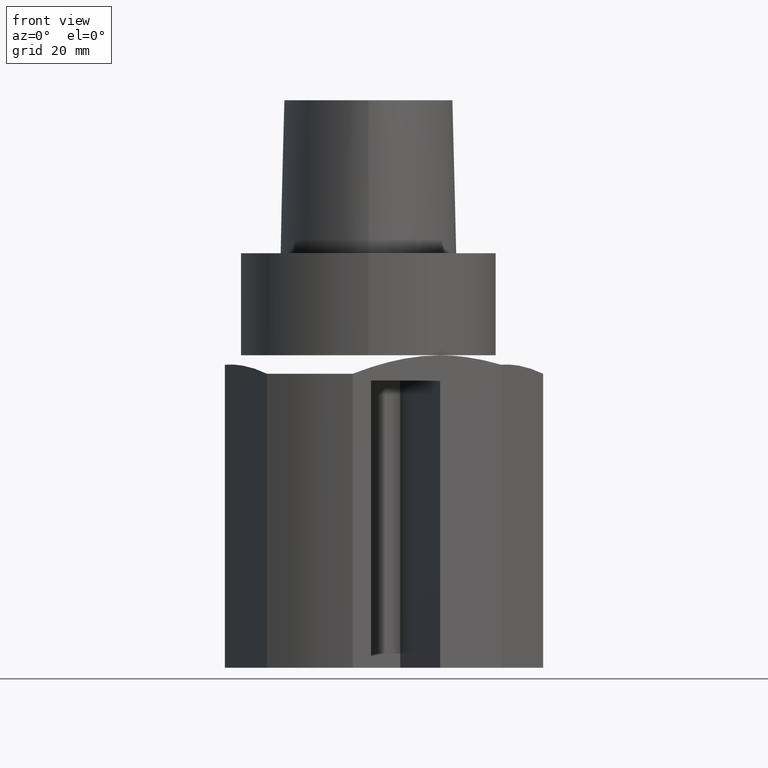
[diagram: clean part render]
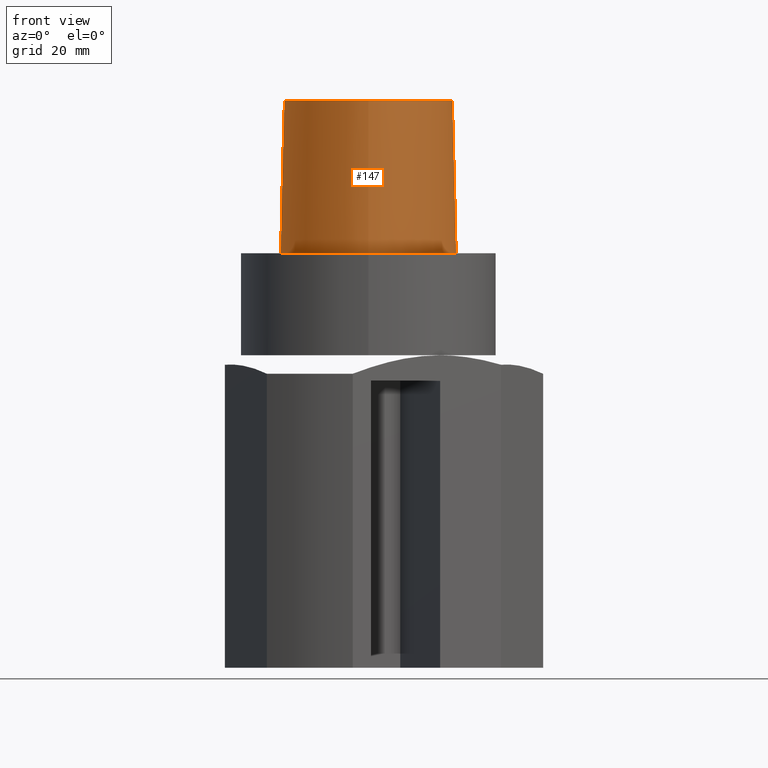
[diagram: same view with one face highlighted and labeled with its STEP entity id]
A machine part, front view. The second image highlights one B-rep face of the part: STEP entity #147.
In plain terms, the highlighted face is a freeform B-spline surface patch.
Its self-contained STEP definition (entity closure, byte-faithful):
#147=ADVANCED_FACE('240[2]',(#413),#414,.F.);
#233=EDGE_CURVE('240[2]',#538,#539,#540,.T.);
#235=EDGE_CURVE('240[2]',#539,#539,#542,.T.);
#254=EDGE_CURVE('240[2]',#538,#538,#565,.T.);
#413=FACE_OUTER_BOUND('',#760,.T.);
#414=B_SPLINE_SURFACE_WITH_KNOTS('',3,3,((#761,#762,#763,#764),(#765,#766,#767,#768),(#769,#770,#771,#772),(#773,#774,#775,#776),(#777,#778,#779,#780),(#781,#782,#783,#784),(#785,#786,#787,#788),(#789,#790,#791,#792),(#793,#794,#795,#796),(#797,#798,#799,#800),(#801,#802,#803,#804),(#805,#806,#807,#808),(#809,#810,#811,#812),(#813,#814,#815,#816),(#817,#818,#819,#820),(#821,#822,#823,#824),(#825,#826,#827,#828),(#829,#830,#831,#832),(#833,#834,#835,#836),(#837,#838,#839,#840),(#841,#842,#843,#844),(#845,#846,#847,#848),(#849,#850,#851,#852),(#853,#854,#855,#856),(#857,#858,#859,#860),(#861,#862,#863,#864),(#865,#866,#867,#868),(#869,#870,#871,#872),(#873,#874,#875,#876),(#877,#878,#879,#880),(#881,#882,#883,#884),(#885,#886,#887,#888),(#889,#890,#891,#892),(#893,#894,#895,#896),(#897,#898,#899,#900),(#901,#902,#903,#904),(#905,#906,#907,#908),(#909,#910,#911,#912),(#913,#914,#915,#916),(#917,#918,#919,#920),(#921,#922,#923,#924),(#925,#926,#927,#928),(#929,#930,#931,#932),(#933,#934,#935,#936),(#937,#938,#939,#940),(#941,#942,#943,#944),(#945,#946,#947,#948),(#949,#950,#951,#952),(#953,#954,#955,#956),(#957,#958,#959,#960),(#961,#962,#963,#964),(#965,#966,#967,#968),(#969,#970,#971,#972),(#973,#974,#975,#976),(#977,#978,#979,#980),(#981,#982,#983,#984),(#985,#986,#987,#988),(#989,#990,#991,#992),(#993,#994,#995,#996),(#997,#998,#999,#1000),(#1001,#1002,#1003,#1004),(#1005,#1006,#1007,#1008),(#1009,#1010,#1011,#1012),(#1013,#1014,#1015,#1016),(#1017,#1018,#1019,#1020),(#1021,#1022,#1023,#1024),(#1025,#1026,#1027,#1028),(#1029,#1030,#1031,#1032),(#1033,#1034,#1035,#1036),(#1037,#1038,#1039,#1040),(#1041,#1042,#1043,#1044),(#1045,#1046,#1047,#1048),(#1049,#1050,#1051,#1052),(#1053,#1054,#1055,#1056),(#1057,#1058,#1059,#1060),(#1061,#1062,#1063,#1064),(#1065,#1066,#1067,#1068),(#1069,#1070,#1071,#1072),(#1073,#1074,#1075,#1076),(#1077,#1078,#1079,#1080),(#1081,#1082,#1083,#1084),(#1085,#1086,#1087,#1088),(#1089,#1090,#1091,#1092),(#1093,#1094,#1095,#1096),(#1097,#1098,#1099,#1100),(#1101,#1102,#1103,#1104),(#1105,#1106,#1107,#1108),(#1109,#1110,#1111,#1112),(#1113,#1114,#1115,#1116),(#1117,#1118,#1119,#1120),(#1121,#1122,#1123,#1124),(#1125,#1126,#1127,#1128),(#1129,#1130,#1131,#1132),(#1133,#1134,#1135,#1136),(#1137,#1138,#1139,#1140),(#1141,#1142,#1143,#1144)),.UNSPECIFIED.,.T.,.F.,.F.,(4,2,2,2,2,2,2,2,2,2,2,2,2,2,2,2,2,2,2,2,2,2,2,2,2,2,2,2,2,2,2,2,2,2,2,2,2,2,2,2,2,2,2,2,2,2,2,4),(4,4),(0.0,0.023266238907101,0.04642321916497,0.069037428304488,0.090947532765319,0.112181511979892,0.132874081906891,0.153211623090307,0.173403899120381,0.193668982465133,0.214220857423359,0.235256169578881,0.256931182005521,0.279316100520023,0.302327812922285,0.325615908452607,0.348863915862354,0.37211588966546,0.394944167045003,0.417090524637617,0.438530318382332,0.459402579310312,0.479837360161492,0.499920279645309,0.520144802150986,0.540579089622822,0.561451608096301,0.58289068047617,0.605037731022285,0.627865851215146,0.651117829762372,0.674365843809947,0.697654002942623,0.720665464887439,0.743050887635834,0.764725116248188,0.7857605656535,0.806312370379442,0.826577482765943,0.846769695561797,0.867106984936976,0.887799904832214,0.90903349107026,0.930943318867528,0.953557807681498,0.97671479981417,0.999990517903696,1.0),(0.0,1.0),.UNSPECIFIED.);
#538=VERTEX_POINT('',#1683);
#539=VERTEX_POINT('',#1684);
#540=B_SPLINE_CURVE_WITH_KNOTS('',3,(#1685,#1686,#1687,#1688),.UNSPECIFIED.,.F.,.F.,(4,4),(0.0,1.0),.UNSPECIFIED.);
#542=B_SPLINE_CURVE_WITH_KNOTS('',3,(#1691,#1692,#1693,#1694,#1695,#1696,#1697,#1698,#1699,#1700,#1701,#1702,#1703,#1704,#1705,#1706,#1707,#1708,#1709,#1710,#1711,#1712,#1713,#1714,#1715,#1716,#1717,#1718,#1719,#1720,#1721,#1722,#1723,#1724,#1725,#1726,#1727,#1728,#1729,#1730,#1731,#1732,#1733,#1734,#1735,#1736,#1737,#1738,#1739),.UNSPECIFIED.,.T.,.F.,(4,1,1,1,1,1,1,1,1,1,1,1,1,1,1,1,1,1,1,1,1,1,1,1,1,1,1,1,1,1,1,1,1,1,1,1,1,1,1,1,1,1,1,1,1,1,4),(0.0,0.023351915855444,0.046587266388789,0.069240176568065,0.091148511555983,0.1123498082883,0.132988344921176,0.153259056323784,0.173379606256739,0.193575406900779,0.21406817556902,0.235062876490599,0.256724107877353,0.279134072148509,0.302211911987387,0.325585720772129,0.348897942793447,0.372235827811492,0.395117449062017,0.417273776916591,0.438690480917031,0.459517607941485,0.479887726529216,0.499920279645309,0.520109124362118,0.540479544703226,0.561306546843113,0.582722343807168,0.604879209617679,0.627760890760907,0.651098683894914,0.674411064884055,0.697926557694984,0.721709534344695,0.743275604228345,0.764936939065916,0.785931598379216,0.806424124397203,0.826619873462382,0.846740294796301,0.867010839616641,0.887649545430403,0.908851158162203,0.930759261827623,0.953412277508376,0.976648149620789,1.0),.UNSPECIFIED.);
#565=B_SPLINE_CURVE_WITH_KNOTS('',3,(#1777,#1778,#1779,#1780,#1781,#1782,#1783,#1784,#1785,#1786,#1787,#1788,#1789,#1790,#1791,#1792,#1793,#1794,#1795,#1796,#1797,#1798,#1799,#1800,#1801,#1802,#1803,#1804,#1805,#1806,#1807,#1808,#1809,#1810,#1811,#1812,#1813,#1814,#1815,#1816,#1817,#1818,#1819,#1820,#1821,#1822,#1823,#1824,#1825,#1826,#1827,#1828,#1829,#1830,#1831,#1832,#1833,#1834,#1835,#1836,#1837,#1838,#1839,#1840,#1841,#1842,#1843,#1844,#1845,#1846,#1847,#1848,#1849,#1850,#1851,#1852,#1853,#1854,#1855,#1856,#1857,#1858,#1859,#1860,#1861,#1862,#1863,#1864,#1865,#1866,#1867,#1868,#1869,#1870,#1871,#1872),.UNSPECIFIED.,.T.,.F.,(4,2,2,2,2,2,2,2,2,2,2,2,2,2,2,2,2,2,2,2,2,2,2,2,2,2,2,2,2,2,2,2,2,2,2,2,2,2,2,2,2,2,2,2,2,2,2,4),(0.0,0.023266238907101,0.04642321916497,0.069037428304488,0.090947532765319,0.112181511979892,0.132874081906891,0.153211623090307,0.173403899120381,0.193668982465133,0.214220857423359,0.235256169578881,0.256931182005521,0.279316100520023,0.302327812922285,0.325615908452607,0.348863915862354,0.37211588966546,0.394944167045003,0.417090524637617,0.438530318382332,0.459402579310312,0.479837360161492,0.499920279645309,0.520144802150986,0.540579089622822,0.561451608096301,0.58289068047617,0.605037731022285,0.627865851215146,0.651117829762372,0.674365843809947,0.697654002942623,0.720665464887439,0.743050887635834,0.764725116248188,0.7857605656535,0.806312370379442,0.826577482765943,0.846769695561797,0.867106984936976,0.887799904832214,0.90903349107026,0.930943318867528,0.953557807681498,0.97671479981417,0.999990517903696,1.0),.UNSPECIFIED.);
#760=EDGE_LOOP('',(#2199,#2200,#2201,#2202));
#761=CARTESIAN_POINT('',(-0.00164083163227662,-29.5748662817043,1.4210854715202E-014));
#762=CARTESIAN_POINT('',(-0.00109388775485357,-29.1748752353538,16.0));
#763=CARTESIAN_POINT('',(-0.000546943877430524,-28.7748841890034,32.0));
#764=CARTESIAN_POINT('',(-7.10564420632982E-015,-28.3748931426529,48.0));
#765=CARTESIAN_POINT('',(-1.34367882227266,-29.5936106625075,1.4210854715202E-014));
#766=CARTESIAN_POINT('',(-1.32364088726301,-29.1954996353872,16.0));
#767=CARTESIAN_POINT('',(-1.30360295225335,-28.7973886082668,32.0));
#768=CARTESIAN_POINT('',(-1.2835650172437,-28.3992775811465,48.0));
#769=CARTESIAN_POINT('',(-2.68740420004953,-29.3328889282446,1.4210854715202E-014));
#770=CARTESIAN_POINT('',(-2.64750445553282,-28.9319521286455,16.0));
#771=CARTESIAN_POINT('',(-2.60760471101611,-28.5310153290465,32.0));
#772=CARTESIAN_POINT('',(-2.5677049664994,-28.1300785294475,48.0));
#773=CARTESIAN_POINT('',(-5.26074084631931,-28.5400905705423,1.4210854715202E-014));
#774=CARTESIAN_POINT('',(-5.18121381339101,-28.1402727371518,16.0));
#775=CARTESIAN_POINT('',(-5.10168678046272,-27.7404549037613,32.0));
#776=CARTESIAN_POINT('',(-5.02215974753443,-27.3406370703708,48.0));
#777=CARTESIAN_POINT('',(-6.49085836398545,-28.0092939838118,1.4210854715202E-014));
#778=CARTESIAN_POINT('',(-6.39148945613548,-27.6135438881297,16.0));
#779=CARTESIAN_POINT('',(-6.29212054828551,-27.2177937924476,32.0));
#780=CARTESIAN_POINT('',(-6.19275164043553,-26.8220436967655,48.0));
#781=CARTESIAN_POINT('',(-8.82856305941638,-26.7799538548108,1.4210854715202E-014));
#782=CARTESIAN_POINT('',(-8.69143543024714,-26.3953789566877,16.0));
#783=CARTESIAN_POINT('',(-8.55430780107789,-26.0108040585645,32.0));
#784=CARTESIAN_POINT('',(-8.41718017190864,-25.6262291604414,48.0));
#785=CARTESIAN_POINT('',(-9.93834640062538,-26.0856337015913,1.4210854715202E-014));
#786=CARTESIAN_POINT('',(-9.78329057919871,-25.7081232854591,16.0));
#787=CARTESIAN_POINT('',(-9.62823475777205,-25.330612869327,32.0));
#788=CARTESIAN_POINT('',(-9.47317893634538,-24.9531024531949,48.0));
#789=CARTESIAN_POINT('',(-12.0309823905868,-24.5926315357893,1.4210854715202E-014));
#790=CARTESIAN_POINT('',(-11.8421918576357,-24.2319203104979,16.0));
#791=CARTESIAN_POINT('',(-11.6534013246846,-23.8712090852066,32.0));
#792=CARTESIAN_POINT('',(-11.4646107917336,-23.5104978599152,48.0));
#793=CARTESIAN_POINT('',(-13.0167112443809,-23.7978719690822,1.4210854715202E-014));
#794=CARTESIAN_POINT('',(-12.8120582068171,-23.4468353517023,16.0));
#795=CARTESIAN_POINT('',(-12.6074051692533,-23.0957987343225,32.0));
#796=CARTESIAN_POINT('',(-12.4027521316895,-22.7447621169426,48.0));
#797=CARTESIAN_POINT('',(-14.8727265816832,-22.1381942733804,1.4210854715202E-014));
#798=CARTESIAN_POINT('',(-14.6383713737375,-21.808159912819,16.0));
#799=CARTESIAN_POINT('',(-14.4040161657918,-21.4781255522576,32.0));
#800=CARTESIAN_POINT('',(-14.1696609578462,-21.1480911916963,48.0));
#801=CARTESIAN_POINT('',(-15.7456368168333,-21.2761980066665,1.4210854715202E-014));
#802=CARTESIAN_POINT('',(-15.4973991165055,-20.9574397902916,16.0));
#803=CARTESIAN_POINT('',(-15.2491614161778,-20.6386815739168,32.0));
#804=CARTESIAN_POINT('',(-15.0009237158501,-20.319923357542,48.0));
#805=CARTESIAN_POINT('',(-17.3879214183881,-19.499427365145,0.0));
#806=CARTESIAN_POINT('',(-17.1137771976026,-19.204500665996,16.0));
#807=CARTESIAN_POINT('',(-16.8396329768171,-18.9095739668469,32.0));
#808=CARTESIAN_POINT('',(-16.5654887560317,-18.6146472676979,48.0));
#809=CARTESIAN_POINT('',(-18.1593681806271,-18.5865590846551,0.0));
#810=CARTESIAN_POINT('',(-17.8731624623415,-18.3041523513154,16.0));
#811=CARTESIAN_POINT('',(-17.5869567440558,-18.0217456179756,32.0));
#812=CARTESIAN_POINT('',(-17.3007510257701,-17.7393388846359,48.0));
#813=CARTESIAN_POINT('',(-19.6094862833069,-16.7150017171437,0.0));
#814=CARTESIAN_POINT('',(-19.3009203341129,-16.458705455358,16.0));
#815=CARTESIAN_POINT('',(-18.9923543849188,-16.2024091935724,32.0));
#816=CARTESIAN_POINT('',(-18.6837884357248,-15.9461129317867,48.0));
#817=CARTESIAN_POINT('',(-20.289522306802,-15.7573675155919,0.0));
#818=CARTESIAN_POINT('',(-19.9706311197053,-15.5146407474198,16.0));
#819=CARTESIAN_POINT('',(-19.6517399326086,-15.2719139792477,32.0));
#820=CARTESIAN_POINT('',(-19.3328487455118,-15.0291872110755,48.0));
#821=CARTESIAN_POINT('',(-21.5656702578572,-13.797506639011,0.0));
#822=CARTESIAN_POINT('',(-21.2277269942578,-13.5828445459812,16.0));
#823=CARTESIAN_POINT('',(-20.8897837306584,-13.3681824529514,32.0));
#824=CARTESIAN_POINT('',(-20.551840467059,-13.1535203599216,48.0));
#825=CARTESIAN_POINT('',(-22.1623469365906,-12.7956473319474,0.0));
#826=CARTESIAN_POINT('',(-21.8156667575515,-12.5954737847242,16.0));
#827=CARTESIAN_POINT('',(-21.4689865785123,-12.395300237501,32.0));
#828=CARTESIAN_POINT('',(-21.1223063994731,-12.1951266902779,48.0));
#829=CARTESIAN_POINT('',(-23.2752180864568,-10.74347032584,0.0));
#830=CARTESIAN_POINT('',(-22.9126797349918,-10.5732054400807,16.0));
#831=CARTESIAN_POINT('',(-22.5501413835268,-10.4029405543215,32.0));
#832=CARTESIAN_POINT('',(-22.1876030320618,-10.2326756685623,48.0));
#833=CARTESIAN_POINT('',(-23.7911146053519,-9.69299092556668,0.0));
#834=CARTESIAN_POINT('',(-23.4214608987418,-9.53814935338787,16.0));
#835=CARTESIAN_POINT('',(-23.0518071921317,-9.38330778120906,32.0));
#836=CARTESIAN_POINT('',(-22.6821534855217,-9.22846620903024,48.0));
#837=CARTESIAN_POINT('',(-24.7420870094788,-7.53819816873289,0.0));
#838=CARTESIAN_POINT('',(-24.3598707005685,-7.4151490430653,16.0));
#839=CARTESIAN_POINT('',(-23.9776543916582,-7.29209991739768,32.0));
#840=CARTESIAN_POINT('',(-23.595438082748,-7.16905079173009,48.0));
#841=CARTESIAN_POINT('',(-25.1759157970854,-6.43333334291293,0.0));
#842=CARTESIAN_POINT('',(-24.7882755665458,-6.32666326762097,16.0));
#843=CARTESIAN_POINT('',(-24.4006353360062,-6.21999319232899,32.0));
#844=CARTESIAN_POINT('',(-24.0129951054667,-6.11332311703703,48.0));
#845=CARTESIAN_POINT('',(-25.9554404448504,-4.16361692512217,0.0));
#846=CARTESIAN_POINT('',(-25.5588495567967,-4.090664550757,16.0));
#847=CARTESIAN_POINT('',(-25.162258668743,-4.01771217639183,32.0));
#848=CARTESIAN_POINT('',(-24.7656677806893,-3.94475980202668,48.0));
#849=CARTESIAN_POINT('',(-26.2988231270793,-2.99796562277024,0.0));
#850=CARTESIAN_POINT('',(-25.8987494668059,-2.94236646726182,16.0));
#851=CARTESIAN_POINT('',(-25.4986758065324,-2.8867673117534,32.0));
#852=CARTESIAN_POINT('',(-25.0986021462589,-2.83116815624498,48.0));
#853=CARTESIAN_POINT('',(-26.8823734669132,-0.603263018451628,0.0));
#854=CARTESIAN_POINT('',(-26.4773269868267,-0.58326995782474,16.0));
#855=CARTESIAN_POINT('',(-26.0722805067402,-0.563276897197824,32.0));
#856=CARTESIAN_POINT('',(-25.6672340266537,-0.543283836570936,48.0));
#857=CARTESIAN_POINT('',(-27.1190847093475,0.626638314508966,0.0));
#858=CARTESIAN_POINT('',(-26.7126061354873,0.628366159501013,16.0));
#859=CARTESIAN_POINT('',(-26.306127561627,0.63009400449306,32.0));
#860=CARTESIAN_POINT('',(-25.8996489877668,0.631821849485107,48.0));
#861=CARTESIAN_POINT('',(-27.4609002561416,3.14696645819561,0.0));
#862=CARTESIAN_POINT('',(-27.0547212638528,3.11146875703147,16.0));
#863=CARTESIAN_POINT('',(-26.6485422715639,3.07597105586737,32.0));
#864=CARTESIAN_POINT('',(-26.2423632792751,3.04047335470324,48.0));
#865=CARTESIAN_POINT('',(-27.5614402101816,4.43805628657725,0.0));
#866=CARTESIAN_POINT('',(-27.1570763257013,4.38358087482689,16.0));
#867=CARTESIAN_POINT('',(-26.7527124412211,4.32910546307653,32.0));
#868=CARTESIAN_POINT('',(-26.3483485567409,4.27463005132617,48.0));
#869=CARTESIAN_POINT('',(-27.5863066124947,7.05787796805234,0.0));
#870=CARTESIAN_POINT('',(-27.1886435264071,6.96515495190911,16.0));
#871=CARTESIAN_POINT('',(-26.7909804403194,6.87243193576589,32.0));
#872=CARTESIAN_POINT('',(-26.3933173542318,6.77970891962269,48.0));
#873=CARTESIAN_POINT('',(-27.5056201279308,8.38665155837626,0.0));
#874=CARTESIAN_POINT('',(-27.1129044510275,8.27466583473029,16.0));
#875=CARTESIAN_POINT('',(-26.7201887741241,8.16268011108428,32.0));
#876=CARTESIAN_POINT('',(-26.3274730972208,8.05069438743831,48.0));
#877=CARTESIAN_POINT('',(-27.0954571151674,11.0352567744664,0.0));
#878=CARTESIAN_POINT('',(-26.7183753741604,10.8867620797351,16.0));
#879=CARTESIAN_POINT('',(-26.3412936331534,10.7382673850039,32.0));
#880=CARTESIAN_POINT('',(-25.9642118921463,10.5897726902727,48.0));
#881=CARTESIAN_POINT('',(-26.7630041230867,12.3547893226748,0.0));
#882=CARTESIAN_POINT('',(-26.3965598522753,12.1889620363458,16.0));
#883=CARTESIAN_POINT('',(-26.0301155814639,12.0231347500168,32.0));
#884=CARTESIAN_POINT('',(-25.6636713106525,11.8573074636878,48.0));
#885=CARTESIAN_POINT('',(-25.6724521861925,14.8124702450063,0.0));
#886=CARTESIAN_POINT('',(-25.3253408215574,14.6123501239471,16.0));
#887=CARTESIAN_POINT('',(-24.9782294569222,14.4122300028879,32.0));
#888=CARTESIAN_POINT('',(-24.631118092287,14.2121098818286,48.0));
#889=CARTESIAN_POINT('',(-24.9150869333233,15.9509269437304,0.0));
#890=CARTESIAN_POINT('',(-24.5767509947569,15.7338600538486,16.0));
#891=CARTESIAN_POINT('',(-24.2384150561905,15.5167931639667,32.0));
#892=CARTESIAN_POINT('',(-23.9000791176241,15.2997262740848,48.0));
#893=CARTESIAN_POINT('',(-23.1210312548435,17.9569470053759,0.0));
#894=CARTESIAN_POINT('',(-22.8030108627851,17.7061249979891,16.0));
#895=CARTESIAN_POINT('',(-22.4849904707268,17.4553029906023,32.0));
#896=CARTESIAN_POINT('',(-22.1669700786685,17.2044809832156,48.0));
#897=CARTESIAN_POINT('',(-22.0842931950003,18.8244641174544,0.0));
#898=CARTESIAN_POINT('',(-21.7778135373241,18.5567873324772,16.0));
#899=CARTESIAN_POINT('',(-21.4713338796478,18.2891105475,32.0));
#900=CARTESIAN_POINT('',(-21.1648542219715,18.0214337625228,48.0));
#901=CARTESIAN_POINT('',(-19.908909483221,20.3616348354058,0.0));
#902=CARTESIAN_POINT('',(-19.628591242806,20.0640526797034,16.0));
#903=CARTESIAN_POINT('',(-19.348273002391,19.766470524001,32.0));
#904=CARTESIAN_POINT('',(-19.0679547619761,19.4688883682986,48.0));
#905=CARTESIAN_POINT('',(-18.7724650249979,21.0346058511353,0.0));
#906=CARTESIAN_POINT('',(-18.5068075321553,20.7239723375169,16.0));
#907=CARTESIAN_POINT('',(-18.2411500393127,20.4133388238985,32.0));
#908=CARTESIAN_POINT('',(-17.9754925464701,20.1027053102802,48.0));
#909=CARTESIAN_POINT('',(-16.4567596515209,22.2069945116741,0.0));
#910=CARTESIAN_POINT('',(-16.2218541830065,21.8737033613927,16.0));
#911=CARTESIAN_POINT('',(-15.9869487144921,21.5404122111113,32.0));
#912=CARTESIAN_POINT('',(-15.7520432459778,21.2071210608299,48.0));
#913=CARTESIAN_POINT('',(-15.2797918086139,22.7109959882008,0.0));
#914=CARTESIAN_POINT('',(-15.0609268076114,22.3679990903467,16.0));
#915=CARTESIAN_POINT('',(-14.8420618066089,22.0250021924925,32.0));
#916=CARTESIAN_POINT('',(-14.6231968056063,21.6820052946383,48.0));
#917=CARTESIAN_POINT('',(-12.9207332535993,23.5857253409895,0.0));
#918=CARTESIAN_POINT('',(-12.7344650558058,23.2254730372688,16.0));
#919=CARTESIAN_POINT('',(-12.5481968580123,22.8652207335481,32.0));
#920=CARTESIAN_POINT('',(-12.3619286602188,22.5049684298274,48.0));
#921=CARTESIAN_POINT('',(-11.740003999522,23.9601922020954,0.0));
#922=CARTESIAN_POINT('',(-11.5702860772561,23.5923778375068,16.0));
#923=CARTESIAN_POINT('',(-11.4005681549901,23.2245634729183,32.0));
#924=CARTESIAN_POINT('',(-11.2308502327242,22.8567491083297,48.0));
#925=CARTESIAN_POINT('',(-9.37648722149752,24.5736332451035,0.0));
#926=CARTESIAN_POINT('',(-9.24017438913907,24.1942544876504,16.0));
#927=CARTESIAN_POINT('',(-9.10386155678063,23.8148757301974,32.0));
#928=CARTESIAN_POINT('',(-8.96754872442218,23.4354969727443,48.0));
#929=CARTESIAN_POINT('',(-8.19458153545295,24.8159316598014,0.0));
#930=CARTESIAN_POINT('',(-8.07509348120514,24.4324733305797,16.0));
#931=CARTESIAN_POINT('',(-7.95560542695733,24.049015001358,32.0));
#932=CARTESIAN_POINT('',(-7.83611737270952,23.6655566721364,48.0));
#933=CARTESIAN_POINT('',(-5.83850844197054,25.1759510165757,0.0));
#934=CARTESIAN_POINT('',(-5.75262513537188,24.7811764769356,16.0));
#935=CARTESIAN_POINT('',(-5.66674182877322,24.3864019372956,32.0));
#936=CARTESIAN_POINT('',(-5.58085852217456,23.9916273976555,48.0));
#937=CARTESIAN_POINT('',(-4.66469807187812,25.2961766417791,0.0));
#938=CARTESIAN_POINT('',(-4.59558843273108,24.8941072061456,16.0));
#939=CARTESIAN_POINT('',(-4.52647879358404,24.492037770512,32.0));
#940=CARTESIAN_POINT('',(-4.457369154437,24.0899683348785,48.0));
#941=CARTESIAN_POINT('',(-2.3312699890678,25.4544662638825,0.0));
#942=CARTESIAN_POINT('',(-2.29647121024837,25.0618226209864,16.0));
#943=CARTESIAN_POINT('',(-2.26167243142894,24.6691789780903,32.0));
#944=CARTESIAN_POINT('',(-2.22687365260951,24.2765353351942,48.0));
#945=CARTESIAN_POINT('',(-1.17175591409117,25.4939093361241,0.0));
#946=CARTESIAN_POINT('',(-1.15448009866525,25.1176923885799,16.0));
#947=CARTESIAN_POINT('',(-1.13720428323932,24.7414754410358,32.0));
#948=CARTESIAN_POINT('',(-1.1199284678134,24.3652584934917,48.0));
#949=CARTESIAN_POINT('',(1.15545266416126,25.494540252471,0.0));
#950=CARTESIAN_POINT('',(1.13757337077305,25.1184162091964,16.0));
#951=CARTESIAN_POINT('',(1.11969407738485,24.7422921659217,32.0));
#952=CARTESIAN_POINT('',(1.10181478399665,24.366168122647,48.0));
#953=CARTESIAN_POINT('',(2.32314720120702,25.4551743644366,0.0));
#954=CARTESIAN_POINT('',(2.28763587852751,25.0624845721615,16.0));
#955=CARTESIAN_POINT('',(2.252124555848,24.6697947798863,32.0));
#956=CARTESIAN_POINT('',(2.21661323316848,24.2771049876112,48.0));
#957=CARTESIAN_POINT('',(4.66463729586072,25.2960231489021,0.0));
#958=CARTESIAN_POINT('',(4.59473395742708,24.89409982816,16.0));
#959=CARTESIAN_POINT('',(4.52483061899343,24.492176507418,32.0));
#960=CARTESIAN_POINT('',(4.45492728055979,24.0902531866759,48.0));
#961=CARTESIAN_POINT('',(5.83837051795068,25.1754079607774,0.0));
#962=CARTESIAN_POINT('',(5.75171531671322,24.7809806255071,16.0));
#963=CARTESIAN_POINT('',(5.66506011547576,24.3865532902368,32.0));
#964=CARTESIAN_POINT('',(5.5784049142383,23.9921259549665,48.0));
#965=CARTESIAN_POINT('',(8.19448404193754,24.8154739309331,0.0));
#966=CARTESIAN_POINT('',(8.07421934126736,24.4324236535682,16.0));
#967=CARTESIAN_POINT('',(7.95395464059718,24.0493733762032,32.0));
#968=CARTESIAN_POINT('',(7.833689939927,23.6663230988383,48.0));
#969=CARTESIAN_POINT('',(9.37650995847748,24.573664860466,0.0));
#970=CARTESIAN_POINT('',(9.23939278056019,24.1945289885103,16.0));
#971=CARTESIAN_POINT('',(9.1022756026429,23.8153931165546,32.0));
#972=CARTESIAN_POINT('',(8.96515842472561,23.4362572445989,48.0));
#973=CARTESIAN_POINT('',(11.7399573199399,23.9602471092435,0.0));
#974=CARTESIAN_POINT('',(11.5694176589878,23.5925750133392,16.0));
#975=CARTESIAN_POINT('',(11.3988779980358,23.2249029174349,32.0));
#976=CARTESIAN_POINT('',(11.2283383370838,22.8572308215306,48.0));
#977=CARTESIAN_POINT('',(12.9204914744584,23.585293366417,0.0));
#978=CARTESIAN_POINT('',(12.7334126019956,23.2252563620381,16.0));
#979=CARTESIAN_POINT('',(12.5463337295329,22.8652193576591,32.0));
#980=CARTESIAN_POINT('',(12.3592548570701,22.5051823532802,48.0));
#981=CARTESIAN_POINT('',(15.2795848008339,22.7105342386106,0.0));
#982=CARTESIAN_POINT('',(15.0599456207753,22.3678257332467,16.0));
#983=CARTESIAN_POINT('',(14.8403064407168,22.0251172278828,32.0));
#984=CARTESIAN_POINT('',(14.6206672606582,21.6824087225189,48.0));
#985=CARTESIAN_POINT('',(16.4567913745813,22.2070147920283,0.0));
#986=CARTESIAN_POINT('',(16.2211379891366,21.8740106312453,16.0));
#987=CARTESIAN_POINT('',(15.985484603692,21.5410064704624,32.0));
#988=CARTESIAN_POINT('',(15.7498312182473,21.2080023096794,48.0));
#989=CARTESIAN_POINT('',(18.7726283764867,21.034903794727,0.0));
#990=CARTESIAN_POINT('',(18.5061802246464,20.7246144010509,16.0));
#991=CARTESIAN_POINT('',(18.239732072806,20.4143250073749,32.0));
#992=CARTESIAN_POINT('',(17.9732839209656,20.1040356136989,48.0));
#993=CARTESIAN_POINT('',(19.9089592260428,20.3617120962174,0.0));
#994=CARTESIAN_POINT('',(19.6277825012094,20.0645362290446,16.0));
#995=CARTESIAN_POINT('',(19.346605776376,19.7673603618717,32.0));
#996=CARTESIAN_POINT('',(19.0654290515425,19.4701844946989,48.0));
#997=CARTESIAN_POINT('',(22.0842485191724,18.8243782496281,0.0));
#998=CARTESIAN_POINT('',(21.7772896699694,18.5572545504423,16.0));
#999=CARTESIAN_POINT('',(21.4703308207664,18.2901308512565,32.0));
#1000=CARTESIAN_POINT('',(21.1633719715633,18.0230071520707,48.0));
#1001=CARTESIAN_POINT('',(23.12100726512,17.9569227334155,0.0));
#1002=CARTESIAN_POINT('',(22.8029696368782,17.7067453188338,16.0));
#1003=CARTESIAN_POINT('',(22.4849320086363,17.456567904252,32.0));
#1004=CARTESIAN_POINT('',(22.1668943803944,17.2063904896703,48.0));
#1005=CARTESIAN_POINT('',(24.9151158158093,15.9509545348034,0.0));
#1006=CARTESIAN_POINT('',(24.5756586677008,15.7344431299893,16.0));
#1007=CARTESIAN_POINT('',(24.2362015195923,15.5179317251751,32.0));
#1008=CARTESIAN_POINT('',(23.8967443714838,15.301420320361,48.0));
#1009=CARTESIAN_POINT('',(25.6725132300842,14.8124880933032,0.0));
#1010=CARTESIAN_POINT('',(25.3227202771017,14.6127234549365,16.0));
#1011=CARTESIAN_POINT('',(24.9729273241191,14.4129588165699,32.0));
#1012=CARTESIAN_POINT('',(24.6231343711365,14.2131941782033,48.0));
#1013=CARTESIAN_POINT('',(26.762962807837,12.3547780213407,0.0));
#1014=CARTESIAN_POINT('',(26.398663500033,12.1901922596334,16.0));
#1015=CARTESIAN_POINT('',(26.0343641922291,12.0256064979261,32.0));
#1016=CARTESIAN_POINT('',(25.6700648844252,11.8610207362188,48.0));
#1017=CARTESIAN_POINT('',(27.0952799458876,11.0352256163986,0.0));
#1018=CARTESIAN_POINT('',(26.7267395269462,10.8890582561754,16.0));
#1019=CARTESIAN_POINT('',(26.3581991080048,10.7428908959522,32.0));
#1020=CARTESIAN_POINT('',(25.9896586890633,10.596723535729,48.0));
#1021=CARTESIAN_POINT('',(27.5055512569286,8.3866145607775,0.0));
#1022=CARTESIAN_POINT('',(27.1169004134887,8.27733014584274,16.0));
#1023=CARTESIAN_POINT('',(26.7282495700488,8.16804573090795,32.0));
#1024=CARTESIAN_POINT('',(26.3395987266089,8.05876131597316,48.0));
#1025=CARTESIAN_POINT('',(27.5864807188881,7.0578551379399,0.0));
#1026=CARTESIAN_POINT('',(27.1820241656145,6.96726116911853,16.0));
#1027=CARTESIAN_POINT('',(26.777567612341,6.87666720029716,32.0));
#1028=CARTESIAN_POINT('',(26.3731110590674,6.7860732314758,48.0));
#1029=CARTESIAN_POINT('',(27.561392778196,4.43806075995118,0.0));
#1030=CARTESIAN_POINT('',(27.1463822084827,4.38487769126067,16.0));
#1031=CARTESIAN_POINT('',(26.7313716387694,4.33169462257015,32.0));
#1032=CARTESIAN_POINT('',(26.3163610690561,4.27851155387961,48.0));
#1033=CARTESIAN_POINT('',(27.4604014662893,3.14698296007577,0.0));
#1034=CARTESIAN_POINT('',(27.0515030324356,3.11254082684147,16.0));
#1035=CARTESIAN_POINT('',(26.642604598582,3.07809869360719,32.0));
#1036=CARTESIAN_POINT('',(26.2337061647284,3.04365656037291,48.0));
#1037=CARTESIAN_POINT('',(27.118611303309,0.626629008731157,0.0));
#1038=CARTESIAN_POINT('',(26.7151928129601,0.629259001527828,16.0));
#1039=CARTESIAN_POINT('',(26.3117743226112,0.631888994324498,32.0));
#1040=CARTESIAN_POINT('',(25.9083558322623,0.63451898712114,48.0));
#1041=CARTESIAN_POINT('',(26.8823561320654,-0.603307445442226,0.0));
#1042=CARTESIAN_POINT('',(26.4782735139235,-0.582338301865406,16.0));
#1043=CARTESIAN_POINT('',(26.0741908957816,-0.561369158288613,32.0));
#1044=CARTESIAN_POINT('',(25.6701082776397,-0.540400014711793,48.0));
#1045=CARTESIAN_POINT('',(26.2990081949749,-2.99798519998626,0.0));
#1046=CARTESIAN_POINT('',(25.8983879486983,-2.94136859415721,16.0));
#1047=CARTESIAN_POINT('',(25.4977677024218,-2.88475198832813,32.0));
#1048=CARTESIAN_POINT('',(25.0971474561453,-2.82813538249906,48.0));
#1049=CARTESIAN_POINT('',(25.9553872246104,-4.16357961185389,0.0));
#1050=CARTESIAN_POINT('',(25.5588297122605,-4.08964078527984,16.0));
#1051=CARTESIAN_POINT('',(25.1622721999106,-4.01570195870576,32.0));
#1052=CARTESIAN_POINT('',(24.7657146875607,-3.94176313213171,48.0));
#1053=CARTESIAN_POINT('',(25.1758761789259,-6.43333881304991,0.0));
#1054=CARTESIAN_POINT('',(24.7887287831653,-6.32571500476018,16.0));
#1055=CARTESIAN_POINT('',(24.4015813874046,-6.21809119647045,32.0));
#1056=CARTESIAN_POINT('',(24.014433991644,-6.11046738818072,48.0));
#1057=CARTESIAN_POINT('',(24.7422891917365,-7.53829982079648,0.0));
#1058=CARTESIAN_POINT('',(24.3604472200928,-7.41429948784324,16.0));
#1059=CARTESIAN_POINT('',(23.9786052484491,-7.29029915489002,32.0));
#1060=CARTESIAN_POINT('',(23.5967632768054,-7.16629882193681,48.0));
#1061=CARTESIAN_POINT('',(23.7911396305002,-9.69297644170626,0.0));
#1062=CARTESIAN_POINT('',(23.4218452335822,-9.537222542406,16.0));
#1063=CARTESIAN_POINT('',(23.0525508366642,-9.38146864310576,32.0));
#1064=CARTESIAN_POINT('',(22.6832564397462,-9.22571474380553,48.0));
#1065=CARTESIAN_POINT('',(23.2748328680553,-10.7432476936092,0.0));
#1066=CARTESIAN_POINT('',(22.9127556972629,-10.5721057092551,16.0));
#1067=CARTESIAN_POINT('',(22.5506785264706,-10.4009637249009,32.0));
#1068=CARTESIAN_POINT('',(22.1886013556782,-10.2298217405468,48.0));
#1069=CARTESIAN_POINT('',(22.1620073500161,-12.7954883285933,0.0));
#1070=CARTESIAN_POINT('',(21.815844057366,-12.5944492405716,16.0));
#1071=CARTESIAN_POINT('',(21.4696807647159,-12.3934101525499,32.0));
#1072=CARTESIAN_POINT('',(21.1235174720658,-12.1923710645282,48.0));
#1073=CARTESIAN_POINT('',(21.5657838219206,-13.797617876684,0.0));
#1074=CARTESIAN_POINT('',(21.2283122616896,-13.5820671510252,16.0));
#1075=CARTESIAN_POINT('',(20.8908407014586,-13.3665164253664,32.0));
#1076=CARTESIAN_POINT('',(20.5533691412275,-13.1509656997077,48.0));
#1077=CARTESIAN_POINT('',(20.289692338909,-15.7574429608729,0.0));
#1078=CARTESIAN_POINT('',(19.9713233200916,-15.5138718669657,16.0));
#1079=CARTESIAN_POINT('',(19.6529543012743,-15.2703007730586,32.0));
#1080=CARTESIAN_POINT('',(19.3345852824569,-15.0267296791514,48.0));
#1081=CARTESIAN_POINT('',(19.6092541949823,-16.7147675174567,0.0));
#1082=CARTESIAN_POINT('',(19.301307772478,-16.4576955223117,16.0));
#1083=CARTESIAN_POINT('',(18.9933613499738,-16.2006235271668,32.0));
#1084=CARTESIAN_POINT('',(18.6854149274695,-15.9435515320218,48.0));
#1085=CARTESIAN_POINT('',(18.1590928335012,-18.5863673368761,0.0));
#1086=CARTESIAN_POINT('',(17.8735516820659,-18.3032106053919,16.0));
#1087=CARTESIAN_POINT('',(17.5880105306306,-18.0200538739077,32.0));
#1088=CARTESIAN_POINT('',(17.3024693791953,-17.7368971424234,48.0));
#1089=CARTESIAN_POINT('',(17.3880163872248,-19.4995970803095,0.0));
#1090=CARTESIAN_POINT('',(17.1144808747432,-19.203874850947,16.0));
#1091=CARTESIAN_POINT('',(16.8409453622615,-18.9081526215846,32.0));
#1092=CARTESIAN_POINT('',(16.5674098497798,-18.6124303922221,48.0));
#1093=CARTESIAN_POINT('',(15.7458756068693,-21.2763690689372,1.4210854715202E-014));
#1094=CARTESIAN_POINT('',(15.4983072339672,-20.9568721930512,16.0));
#1095=CARTESIAN_POINT('',(15.2507388610651,-20.6373753171652,32.0));
#1096=CARTESIAN_POINT('',(15.003170488163,-20.3178784412792,48.0));
#1097=CARTESIAN_POINT('',(14.8727251768577,-22.1379896342994,1.4210854715202E-014));
#1098=CARTESIAN_POINT('',(14.6391608882147,-21.8073250769185,16.0));
#1099=CARTESIAN_POINT('',(14.4055965995716,-21.4766605195376,32.0));
#1100=CARTESIAN_POINT('',(14.1720323109285,-21.1459959621566,48.0));
#1101=CARTESIAN_POINT('',(13.0164986146837,-23.7977451564491,1.4210854715202E-014));
#1102=CARTESIAN_POINT('',(12.8127423338318,-23.4462259743379,16.0));
#1103=CARTESIAN_POINT('',(12.60898605298,-23.0947067922266,32.0));
#1104=CARTESIAN_POINT('',(12.4052297721281,-22.7431876101154,48.0));
#1105=CARTESIAN_POINT('',(12.0308072155323,-24.5929843178023,1.4210854715202E-014));
#1106=CARTESIAN_POINT('',(11.8428940651753,-24.2318220185598,16.0));
#1107=CARTESIAN_POINT('',(11.6549809148182,-23.8706597193174,32.0));
#1108=CARTESIAN_POINT('',(11.4670677644611,-23.5094974200749,48.0));
#1109=CARTESIAN_POINT('',(9.93827470804141,-26.0847683712151,1.4210854715202E-014));
#1110=CARTESIAN_POINT('',(9.78408463139422,-25.7066442659563,16.0));
#1111=CARTESIAN_POINT('',(9.62989455474702,-25.3285201606975,32.0));
#1112=CARTESIAN_POINT('',(9.47570447809983,-24.9503960554387,48.0));
#1113=CARTESIAN_POINT('',(8.82855678381542,-26.7773164869684,1.4210854715202E-014));
#1114=CARTESIAN_POINT('',(8.69230228536615,-26.3919547294402,16.0));
#1115=CARTESIAN_POINT('',(8.55604778691688,-26.0065929719119,32.0));
#1116=CARTESIAN_POINT('',(8.41979328846762,-25.6212312143836,48.0));
#1117=CARTESIAN_POINT('',(6.49089493491194,-28.0120447965454,1.4210854715202E-014));
#1118=CARTESIAN_POINT('',(6.39245845709313,-27.6161837874229,16.0));
#1119=CARTESIAN_POINT('',(6.29402197927432,-27.2203227783003,32.0));
#1120=CARTESIAN_POINT('',(6.19558550145551,-26.8244617691778,48.0));
#1121=CARTESIAN_POINT('',(5.26075348594719,-28.5502192368694,1.4210854715202E-014));
#1122=CARTESIAN_POINT('',(5.18221455016645,-28.1510913348169,16.0));
#1123=CARTESIAN_POINT('',(5.10367561438572,-27.7519634327644,32.0));
#1124=CARTESIAN_POINT('',(5.02513667860498,-27.3528355307118,48.0));
#1125=CARTESIAN_POINT('',(2.68687274960978,-29.3229139791992,1.4210854715202E-014));
#1126=CARTESIAN_POINT('',(2.64803480234481,-28.9207762382605,16.0));
#1127=CARTESIAN_POINT('',(2.60919685507985,-28.5186384973218,32.0));
#1128=CARTESIAN_POINT('',(2.57035890781488,-28.1165007563831,48.0));
#1129=CARTESIAN_POINT('',(1.34258338152267,-29.5558632991381,1.4210854715202E-014));
#1130=CARTESIAN_POINT('',(1.32360819422078,-29.1540083216529,16.0));
#1131=CARTESIAN_POINT('',(1.3046330069189,-28.7521533441676,32.0));
#1132=CARTESIAN_POINT('',(1.28565781961701,-28.3502983666824,48.0));
#1133=CARTESIAN_POINT('',(-0.000546943594638622,-29.5748509568372,1.4210854715202E-014));
#1134=CARTESIAN_POINT('',(-1.58865960915729E-005,-29.1748583819893,16.0));
#1135=CARTESIAN_POINT('',(0.000515170402455476,-28.7748658071413,32.0));
#1136=CARTESIAN_POINT('',(0.00104622740100153,-28.3748732322933,48.0));
#1137=CARTESIAN_POINT('',(-0.00109388747332262,-29.5748586424797,1.4210854715202E-014));
#1138=CARTESIAN_POINT('',(-0.000554887099611573,-29.1748668299322,16.0));
#1139=CARTESIAN_POINT('',(-1.58867258995239E-005,-28.7748750173847,32.0));
#1140=CARTESIAN_POINT('',(0.000523113647811525,-28.3748832048372,48.0));
#1141=CARTESIAN_POINT('',(-0.00164083163225662,-29.5748662817043,1.4210854715202E-014));
#1142=CARTESIAN_POINT('',(-0.00109388775484057,-29.1748752353538,16.0));
#1143=CARTESIAN_POINT('',(-0.000546943877423524,-28.7748841890034,32.0));
#1144=CARTESIAN_POINT('',(-6.51692220632981E-015,-28.3748931426529,48.0));
#1683=CARTESIAN_POINT('',(-0.00164083163227662,-29.5748662817043,1.4210854715202E-014));
#1684=CARTESIAN_POINT('',(-7.10564420632982E-015,-28.3748931426529,48.0));
#1685=CARTESIAN_POINT('',(-0.00164083163227662,-29.5748662817043,1.4210854715202E-014));
#1686=CARTESIAN_POINT('',(-0.00109388775485357,-29.1748752353538,16.0));
#1687=CARTESIAN_POINT('',(-0.000546943877430524,-28.7748841890034,32.0));
#1688=CARTESIAN_POINT('',(-7.10564420632982E-015,-28.3748931426529,48.0));
#1691=CARTESIAN_POINT('',(-7.10564420632982E-015,-28.3748931426529,48.0));
#1692=CARTESIAN_POINT('',(-1.28829169155133,-28.3993673758179,48.0));
#1693=CARTESIAN_POINT('',(-3.85959979030208,-27.8581705845853,48.0));
#1694=CARTESIAN_POINT('',(-7.35807000570215,-26.3039671919376,48.0));
#1695=CARTESIAN_POINT('',(-10.5217929466077,-24.2824556046413,48.0));
#1696=CARTESIAN_POINT('',(-13.3353105701073,-21.9813369841311,48.0));
#1697=CARTESIAN_POINT('',(-15.8288917398101,-19.4930169713482,48.0));
#1698=CARTESIAN_POINT('',(-18.0343115007326,-16.8644361083806,48.0));
#1699=CARTESIAN_POINT('',(-19.9811550180694,-14.112279200302,48.0));
#1700=CARTESIAN_POINT('',(-21.692701668163,-11.2365503175383,48.0));
#1701=CARTESIAN_POINT('',(-23.1773804507421,-8.22359439294641,48.0));
#1702=CARTESIAN_POINT('',(-24.4321787442301,-5.05562842604974,48.0));
#1703=CARTESIAN_POINT('',(-25.4341273198745,-1.71333919058597,48.0));
#1704=CARTESIAN_POINT('',(-26.1351255888409,1.81352567250144,48.0));
#1705=CARTESIAN_POINT('',(-26.4570368424595,5.51539373422401,48.0));
#1706=CARTESIAN_POINT('',(-26.2640433000089,9.31895598900792,48.0));
#1707=CARTESIAN_POINT('',(-25.3673970515537,13.117459349598,48.0));
#1708=CARTESIAN_POINT('',(-23.1650593293068,16.3935410203794,48.0));
#1709=CARTESIAN_POINT('',(-20.166041033419,18.8340538748086,48.0));
#1710=CARTESIAN_POINT('',(-16.8920892201408,20.7294372455208,48.0));
#1711=CARTESIAN_POINT('',(-13.5034428612199,22.1513818197868,48.0));
#1712=CARTESIAN_POINT('',(-10.1051230998292,23.2053592739476,48.0));
#1713=CARTESIAN_POINT('',(-6.71054806820375,23.893087183621,48.0));
#1714=CARTESIAN_POINT('',(-3.3440966300513,24.1872106166354,48.0));
#1715=CARTESIAN_POINT('',(-0.00436859656821,24.4542290901542,48.0));
#1716=CARTESIAN_POINT('',(3.33552046318777,24.1878714828122,48.0));
#1717=CARTESIAN_POINT('',(6.7106009616545,23.893485017694,48.0));
#1718=CARTESIAN_POINT('',(10.1051559974891,23.2054948559444,48.0));
#1719=CARTESIAN_POINT('',(13.5030031791571,22.150447002949,48.0));
#1720=CARTESIAN_POINT('',(16.8923744626256,20.7297323497337,48.0));
#1721=CARTESIAN_POINT('',(20.1652365808761,18.8339154382717,48.0));
#1722=CARTESIAN_POINT('',(23.1681374732146,16.3939826803799,48.0));
#1723=CARTESIAN_POINT('',(25.3601741943936,13.1089864874231,48.0));
#1724=CARTESIAN_POINT('',(26.321105227627,9.27241325382508,48.0));
#1725=CARTESIAN_POINT('',(26.4002391162146,5.46231423864461,48.0));
#1726=CARTESIAN_POINT('',(26.1401991546312,1.76738885478758,48.0));
#1727=CARTESIAN_POINT('',(25.4303705179883,-1.71324147084198,48.0));
#1728=CARTESIAN_POINT('',(24.4327446070836,-5.05553218816385,48.0));
#1729=CARTESIAN_POINT('',(23.1773594553093,-8.22370834660234,48.0));
#1730=CARTESIAN_POINT('',(21.6921674973232,-11.2362273073486,48.0));
#1731=CARTESIAN_POINT('',(19.9813729987982,-14.1124293711817,48.0));
#1732=CARTESIAN_POINT('',(18.033984509433,-16.8641649241506,48.0));
#1733=CARTESIAN_POINT('',(15.8290011220936,-19.4932243550181,48.0));
#1734=CARTESIAN_POINT('',(13.3355411347684,-21.9812451369777,48.0));
#1735=CARTESIAN_POINT('',(10.5217064911847,-24.2838945753292,48.0));
#1736=CARTESIAN_POINT('',(7.35804941740046,-26.2980532430341,48.0));
#1737=CARTESIAN_POINT('',(3.85974088767426,-27.8813814221605,48.0));
#1738=CARTESIAN_POINT('',(1.28828807932148,-28.350418978111,48.0));
#1739=CARTESIAN_POINT('',(-6.51692220632981E-015,-28.3748931426529,48.0));
#1777=CARTESIAN_POINT('',(-0.00164083163227662,-29.5748662817043,1.4210854715202E-014));
#1778=CARTESIAN_POINT('',(-1.34367882227266,-29.5936106625075,1.4210854715202E-014));
#1779=CARTESIAN_POINT('',(-2.68740420004953,-29.3328889282446,1.4210854715202E-014));
#1780=CARTESIAN_POINT('',(-5.26074084631931,-28.5400905705423,1.4210854715202E-014));
#1781=CARTESIAN_POINT('',(-6.49085836398545,-28.0092939838118,1.4210854715202E-014));
#1782=CARTESIAN_POINT('',(-8.82856305941638,-26.7799538548108,1.4210854715202E-014));
#1783=CARTESIAN_POINT('',(-9.93834640062538,-26.0856337015913,1.4210854715202E-014));
#1784=CARTESIAN_POINT('',(-12.0309823905868,-24.5926315357893,1.4210854715202E-014));
#1785=CARTESIAN_POINT('',(-13.0167112443809,-23.7978719690822,1.4210854715202E-014));
#1786=CARTESIAN_POINT('',(-14.8727265816832,-22.1381942733804,1.4210854715202E-014));
#1787=CARTESIAN_POINT('',(-15.7456368168333,-21.2761980066665,1.4210854715202E-014));
#1788=CARTESIAN_POINT('',(-17.3879214183881,-19.499427365145,0.0));
#1789=CARTESIAN_POINT('',(-18.1593681806271,-18.5865590846551,0.0));
#1790=CARTESIAN_POINT('',(-19.6094862833069,-16.7150017171437,0.0));
#1791=CARTESIAN_POINT('',(-20.289522306802,-15.7573675155919,0.0));
#1792=CARTESIAN_POINT('',(-21.5656702578572,-13.797506639011,0.0));
#1793=CARTESIAN_POINT('',(-22.1623469365906,-12.7956473319474,0.0));
#1794=CARTESIAN_POINT('',(-23.2752180864568,-10.74347032584,0.0));
#1795=CARTESIAN_POINT('',(-23.7911146053519,-9.69299092556668,0.0));
#1796=CARTESIAN_POINT('',(-24.7420870094788,-7.53819816873289,0.0));
#1797=CARTESIAN_POINT('',(-25.1759157970854,-6.43333334291293,0.0));
#1798=CARTESIAN_POINT('',(-25.9554404448504,-4.16361692512217,0.0));
#1799=CARTESIAN_POINT('',(-26.2988231270793,-2.99796562277024,0.0));
#1800=CARTESIAN_POINT('',(-26.8823734669132,-0.603263018451628,0.0));
#1801=CARTESIAN_POINT('',(-27.1190847093475,0.626638314508966,0.0));
#1802=CARTESIAN_POINT('',(-27.4609002561416,3.14696645819561,0.0));
#1803=CARTESIAN_POINT('',(-27.5614402101816,4.43805628657725,0.0));
#1804=CARTESIAN_POINT('',(-27.5863066124947,7.05787796805234,0.0));
#1805=CARTESIAN_POINT('',(-27.5056201279308,8.38665155837626,0.0));
#1806=CARTESIAN_POINT('',(-27.0954571151674,11.0352567744664,0.0));
#1807=CARTESIAN_POINT('',(-26.7630041230867,12.3547893226748,0.0));
#1808=CARTESIAN_POINT('',(-25.6724521861925,14.8124702450063,0.0));
#1809=CARTESIAN_POINT('',(-24.9150869333233,15.9509269437304,0.0));
#1810=CARTESIAN_POINT('',(-23.1210312548435,17.9569470053759,0.0));
#1811=CARTESIAN_POINT('',(-22.0842931950003,18.8244641174544,0.0));
#1812=CARTESIAN_POINT('',(-19.908909483221,20.3616348354058,0.0));
#1813=CARTESIAN_POINT('',(-18.7724650249979,21.0346058511353,0.0));
#1814=CARTESIAN_POINT('',(-16.4567596515209,22.2069945116741,0.0));
#1815=CARTESIAN_POINT('',(-15.2797918086139,22.7109959882008,0.0));
#1816=CARTESIAN_POINT('',(-12.9207332535993,23.5857253409895,0.0));
#1817=CARTESIAN_POINT('',(-11.740003999522,23.9601922020954,0.0));
#1818=CARTESIAN_POINT('',(-9.37648722149752,24.5736332451035,0.0));
#1819=CARTESIAN_POINT('',(-8.19458153545295,24.8159316598014,0.0));
#1820=CARTESIAN_POINT('',(-5.83850844197054,25.1759510165757,0.0));
#1821=CARTESIAN_POINT('',(-4.66469807187812,25.2961766417791,0.0));
#1822=CARTESIAN_POINT('',(-2.3312699890678,25.4544662638825,0.0));
#1823=CARTESIAN_POINT('',(-1.17175591409117,25.4939093361241,0.0));
#1824=CARTESIAN_POINT('',(1.15545266416126,25.494540252471,0.0));
#1825=CARTESIAN_POINT('',(2.32314720120702,25.4551743644366,0.0));
#1826=CARTESIAN_POINT('',(4.66463729586072,25.2960231489021,0.0));
#1827=CARTESIAN_POINT('',(5.83837051795068,25.1754079607774,0.0));
#1828=CARTESIAN_POINT('',(8.19448404193754,24.8154739309331,0.0));
#1829=CARTESIAN_POINT('',(9.37650995847748,24.573664860466,0.0));
#1830=CARTESIAN_POINT('',(11.7399573199399,23.9602471092435,0.0));
#1831=CARTESIAN_POINT('',(12.9204914744584,23.585293366417,0.0));
#1832=CARTESIAN_POINT('',(15.2795848008339,22.7105342386106,0.0));
#1833=CARTESIAN_POINT('',(16.4567913745813,22.2070147920283,0.0));
#1834=CARTESIAN_POINT('',(18.7726283764867,21.034903794727,0.0));
#1835=CARTESIAN_POINT('',(19.9089592260428,20.3617120962174,0.0));
#1836=CARTESIAN_POINT('',(22.0842485191724,18.8243782496281,0.0));
#1837=CARTESIAN_POINT('',(23.12100726512,17.9569227334155,0.0));
#1838=CARTESIAN_POINT('',(24.9151158158093,15.9509545348034,0.0));
#1839=CARTESIAN_POINT('',(25.6725132300842,14.8124880933032,0.0));
#1840=CARTESIAN_POINT('',(26.762962807837,12.3547780213407,0.0));
#1841=CARTESIAN_POINT('',(27.0952799458876,11.0352256163986,0.0));
#1842=CARTESIAN_POINT('',(27.5055512569286,8.3866145607775,0.0));
#1843=CARTESIAN_POINT('',(27.5864807188881,7.0578551379399,0.0));
#1844=CARTESIAN_POINT('',(27.561392778196,4.43806075995118,0.0));
#1845=CARTESIAN_POINT('',(27.4604014662893,3.14698296007577,0.0));
#1846=CARTESIAN_POINT('',(27.118611303309,0.626629008731157,0.0));
#1847=CARTESIAN_POINT('',(26.8823561320654,-0.603307445442226,0.0));
#1848=CARTESIAN_POINT('',(26.2990081949749,-2.99798519998626,0.0));
#1849=CARTESIAN_POINT('',(25.9553872246104,-4.16357961185389,0.0));
#1850=CARTESIAN_POINT('',(25.1758761789259,-6.43333881304991,0.0));
#1851=CARTESIAN_POINT('',(24.7422891917365,-7.53829982079648,0.0));
#1852=CARTESIAN_POINT('',(23.7911396305002,-9.69297644170626,0.0));
#1853=CARTESIAN_POINT('',(23.2748328680553,-10.7432476936092,0.0));
#1854=CARTESIAN_POINT('',(22.1620073500161,-12.7954883285933,0.0));
#1855=CARTESIAN_POINT('',(21.5657838219206,-13.797617876684,0.0));
#1856=CARTESIAN_POINT('',(20.289692338909,-15.7574429608729,0.0));
#1857=CARTESIAN_POINT('',(19.6092541949823,-16.7147675174567,0.0));
#1858=CARTESIAN_POINT('',(18.1590928335012,-18.5863673368761,0.0));
#1859=CARTESIAN_POINT('',(17.3880163872248,-19.4995970803095,0.0));
#1860=CARTESIAN_POINT('',(15.7458756068693,-21.2763690689372,1.4210854715202E-014));
#1861=CARTESIAN_POINT('',(14.8727251768577,-22.1379896342994,1.4210854715202E-014));
#1862=CARTESIAN_POINT('',(13.0164986146837,-23.7977451564491,1.4210854715202E-014));
#1863=CARTESIAN_POINT('',(12.0308072155323,-24.5929843178023,1.4210854715202E-014));
#1864=CARTESIAN_POINT('',(9.93827470804141,-26.0847683712151,1.4210854715202E-014));
#1865=CARTESIAN_POINT('',(8.82855678381542,-26.7773164869684,1.4210854715202E-014));
#1866=CARTESIAN_POINT('',(6.49089493491194,-28.0120447965454,1.4210854715202E-014));
#1867=CARTESIAN_POINT('',(5.26075348594719,-28.5502192368694,1.4210854715202E-014));
#1868=CARTESIAN_POINT('',(2.68687274960978,-29.3229139791992,1.4210854715202E-014));
#1869=CARTESIAN_POINT('',(1.34258338152267,-29.5558632991381,1.4210854715202E-014));
#1870=CARTESIAN_POINT('',(-0.000546943594638622,-29.5748509568372,1.4210854715202E-014));
#1871=CARTESIAN_POINT('',(-0.00109388747332262,-29.5748586424797,1.4210854715202E-014));
#1872=CARTESIAN_POINT('',(-0.00164083163225662,-29.5748662817043,1.4210854715202E-014));
#2199=ORIENTED_EDGE('',*,*,#254,.F.);
#2200=ORIENTED_EDGE('',*,*,#233,.T.);
#2201=ORIENTED_EDGE('',*,*,#235,.T.);
#2202=ORIENTED_EDGE('',*,*,#233,.F.);